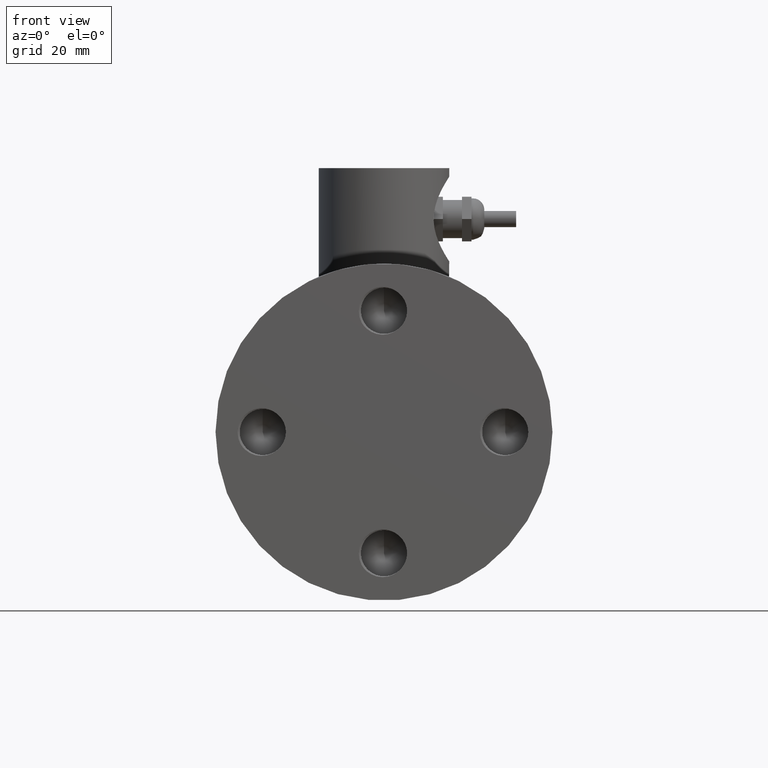
[diagram: clean part render]
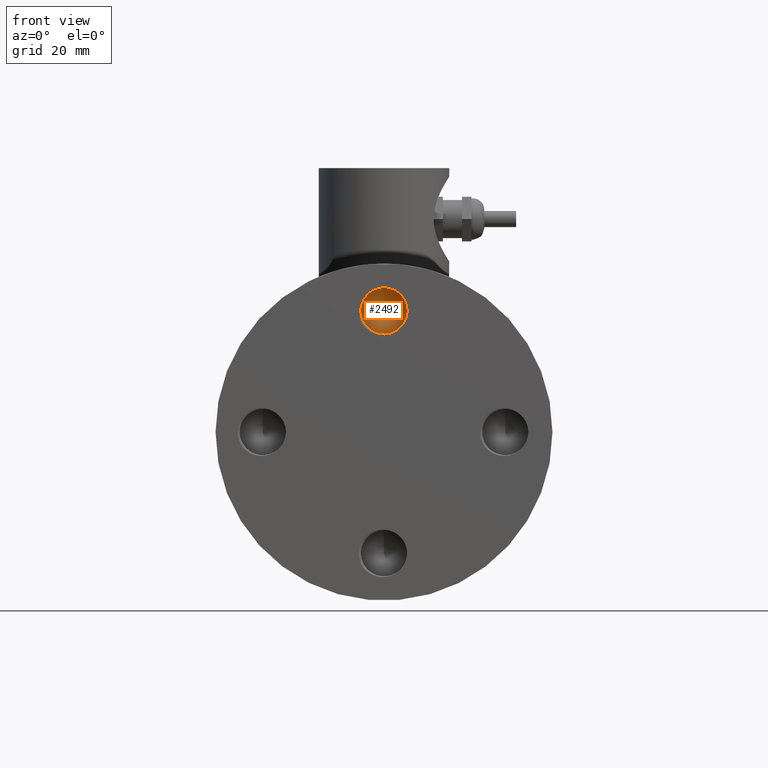
[diagram: same view with one face highlighted and labeled with its STEP entity id]
A machine part, front view. The second image highlights one B-rep face of the part: STEP entity #2492.
In plain terms, the highlighted conical surface has half-angle 59 deg.
Its self-contained STEP definition (entity closure, byte-faithful):
#17=CONICAL_SURFACE('',#2682,0.149154182152261,1.02974425867665);
#391=FACE_OUTER_BOUND('',#541,.T.);
#541=EDGE_LOOP('',(#2172,#2173,#2174,#2175,#2176));
#693=LINE('',#12868,#828);
#828=VECTOR('',#3164,0.15625);
#849=CIRCLE('',#2578,0.28575);
#867=CIRCLE('',#2663,0.28575);
#868=CIRCLE('',#2664,0.28575);
#974=VERTEX_POINT('',#4298);
#975=VERTEX_POINT('',#4315);
#1110=VERTEX_POINT('',#7643);
#1116=VERTEX_POINT('',#12867);
#1245=EDGE_CURVE('',#974,#975,#849,.T.);
#1442=EDGE_CURVE('',#975,#1110,#867,.T.);
#1443=EDGE_CURVE('',#1110,#974,#868,.T.);
#1484=EDGE_CURVE('',#1110,#1116,#693,.T.);
#2172=ORIENTED_EDGE('',*,*,#1442,.F.);
#2173=ORIENTED_EDGE('',*,*,#1245,.F.);
#2174=ORIENTED_EDGE('',*,*,#1443,.F.);
#2175=ORIENTED_EDGE('',*,*,#1484,.T.);
#2176=ORIENTED_EDGE('',*,*,#1484,.F.);
#2492=ADVANCED_FACE('',(#391),#17,.F.);
#2578=AXIS2_PLACEMENT_3D('',#4316,#2894,#2895);
#2663=AXIS2_PLACEMENT_3D('',#7644,#3122,#3123);
#2664=AXIS2_PLACEMENT_3D('',#7645,#3124,#3125);
#2682=AXIS2_PLACEMENT_3D('',#12866,#3162,#3163);
#2894=DIRECTION('center_axis',(0.,1.,0.));
#2895=DIRECTION('ref_axis',(0.,0.,-1.));
#3122=DIRECTION('center_axis',(0.,1.,0.));
#3123=DIRECTION('ref_axis',(0.,0.,-1.));
#3124=DIRECTION('center_axis',(0.,1.,0.));
#3125=DIRECTION('ref_axis',(0.,0.,-1.));
#3162=DIRECTION('center_axis',(0.,-1.,0.));
#3163=DIRECTION('ref_axis',(0.,0.,-1.));
#3164=DIRECTION('',(-1.04972719113862E-16,0.515038074910054,-0.857167300702112));
#4298=CARTESIAN_POINT('',(0.259614596216859,0.511811023622047,1.38061271453309));
#4315=CARTESIAN_POINT('',(-0.177394817545809,0.511811023622047,1.27598182839803));
#4316=CARTESIAN_POINT('Origin',(0.,0.511811023622047,1.5));
#7643=CARTESIAN_POINT('',(3.49942822856356E-17,0.511811023622047,1.78575));
#7644=CARTESIAN_POINT('Origin',(0.,0.511811023622047,1.5));
#7645=CARTESIAN_POINT('Origin',(0.,0.511811023622047,1.5));
#12866=CARTESIAN_POINT('Origin',(0.,0.593886071290615,1.5));
#12867=CARTESIAN_POINT('',(0.,0.683506945509173,1.5));
#12868=CARTESIAN_POINT('',(1.82661191752208E-17,0.593886071290615,1.64915418215226));